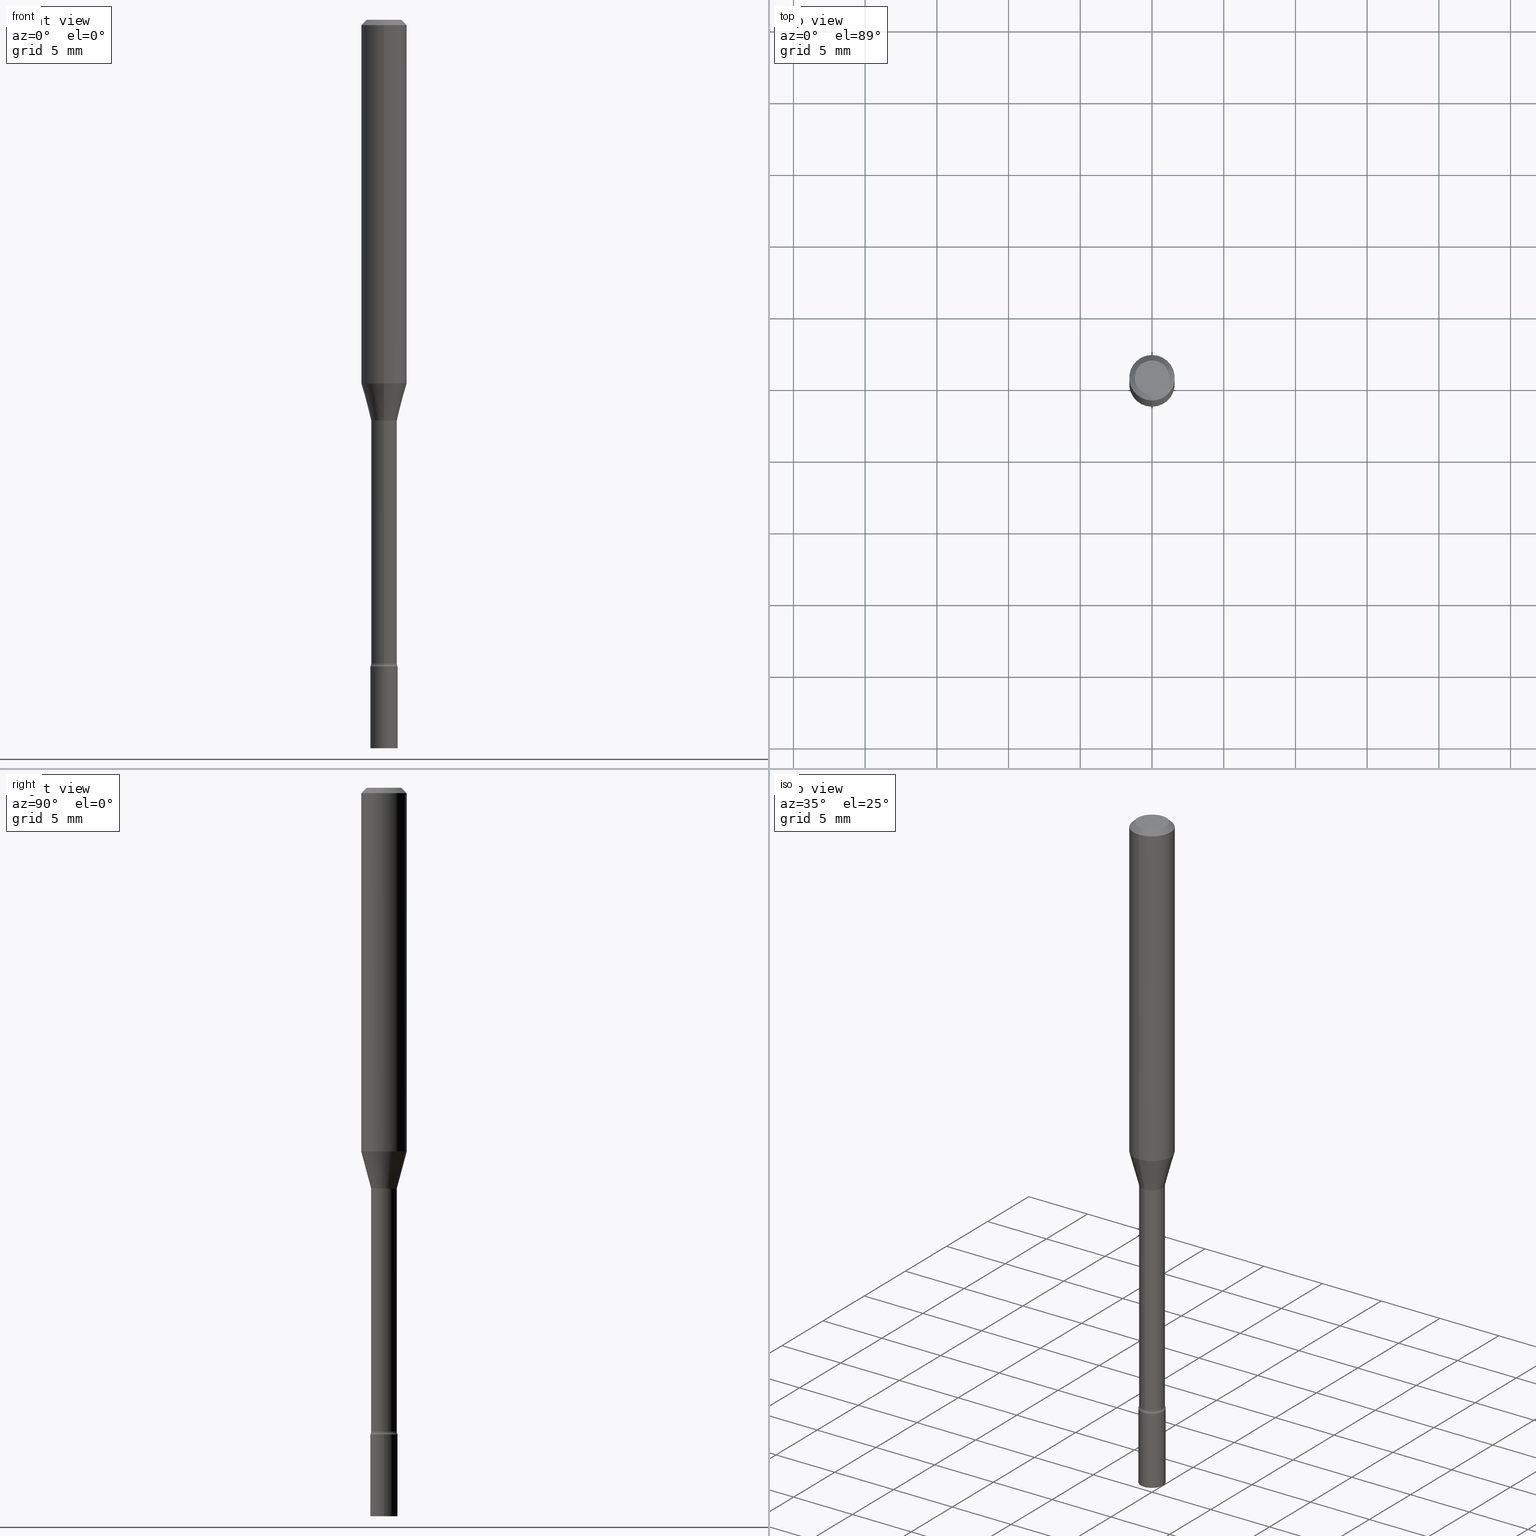
[diagram: canonical four-view strip — front | top / right | iso, engineering-drawing reading convention]
A machine part, canonical four-view strip (front | top / right | iso — engineering-drawing reading convention). The complete STEP part file that produces these views, byte-faithful:
ISO-10303-21;
HEADER;
FILE_DESCRIPTION (( 'STEP AP203' ),
    '1' );
FILE_NAME ('01355.STEP',
    '2024-03-08T21:16:16',
    ( '' ),
    ( '' ),
    'SwSTEP 2.0',
    'SolidWorks 2023',
    '' );
FILE_SCHEMA (( 'CONFIG_CONTROL_DESIGN' ));
ENDSEC;

DATA;
#1 = CARTESIAN_POINT ( 'NONE',  ( 4.890937612370273194E-29, -6.982962677686291165E-15, -2.000000000000000000 ) ) ;
#2 = ADVANCED_FACE ( 'NONE', ( #122 ), #491, .T. ) ;
#3 = FACE_OUTER_BOUND ( 'NONE', #233, .T. ) ;
#4 = LINE ( 'NONE', #11, #28 ) ;
#5 = VERTEX_POINT ( 'NONE', #46 ) ;
#6 = AXIS2_PLACEMENT_3D ( 'NONE', #339, #499, #294 ) ;
#7 = DIRECTION ( 'NONE',  ( -1.000000000000000000, 6.982962677686265922E-15, -4.883557194083112340E-29 ) ) ;
#8 = ORIENTED_EDGE ( 'NONE', *, *, #205, .F. ) ;
#9 = CARTESIAN_POINT ( 'NONE',  ( 4.340707130978617347E-29, -6.197379376446583794E-15, -1.775000000000000133 ) ) ;
#10 = EDGE_LOOP ( 'NONE', ( #270, #281, #43, #511 ) ) ;
#11 = CARTESIAN_POINT ( 'NONE',  ( 2.540979878465616281E-16, 0.03576111260566013778, -1.098092501787273356 ) ) ;
#12 = CONICAL_SURFACE ( 'NONE', #336, 0.03576111260566397498, 0.2617993877991499629 ) ;
#13 = APPROVAL_PERSON_ORGANIZATION ( #180, #462, #470 ) ;
#14 = CARTESIAN_POINT ( 'NONE',  ( 2.504663143554787774E-16, 0.03524999999999615247, -1.101974787463811056 ) ) ;
#15 = CYLINDRICAL_SURFACE ( 'NONE', #182, 0.03525000000000003825 ) ;
#16 = LINE ( 'NONE', #349, #385 ) ;
#17 = CIRCLE ( 'NONE', #282, 0.01499999999999999424 ) ;
#18 =( CONVERSION_BASED_UNIT ( 'INCH', #63 ) LENGTH_UNIT ( ) NAMED_UNIT ( #396 ) );
#19 = AXIS2_PLACEMENT_3D ( 'NONE', #74, #209, #239 ) ;
#20 = CC_DESIGN_SECURITY_CLASSIFICATION ( #338, ( #220 ) ) ;
#21 = LINE ( 'NONE', #505, #238 ) ;
#22 = PRODUCT_DEFINITION ( 'UNKNOWN', '', #220, #99 ) ;
#23 = PERSON_AND_ORGANIZATION ( #487, #67 ) ;
#24 = DIRECTION ( 'NONE',  ( -6.982962677686265133E-15, -1.000000000000000000, 3.819579138641765120E-15 ) ) ;
#25 = DATE_AND_TIME ( #388, #400 ) ;
#26 = DIRECTION ( 'NONE',  ( -2.438088387897960049E-29, 3.491481338843145188E-15, 1.000000000000000000 ) ) ;
#27 = CALENDAR_DATE ( 2024, 8, 3 ) ;
#28 = VECTOR ( 'NONE', #203, 39.37007874015748854 ) ;
#29 = CARTESIAN_POINT ( 'NONE',  ( -2.497185146378605472E-16, -0.03576111260566780525, -1.098092501787272912 ) ) ;
#30 = EDGE_LOOP ( 'NONE', ( #340, #452, #332, #200 ) ) ;
#31 = DIRECTION ( 'NONE',  ( 0.000000000000000000, 0.000000000000000000, 1.000000000000000000 ) ) ;
#32 = APPROVAL ( #463, 'UNSPECIFIED' ) ;
#33 = PLANE ( 'NONE',  #406 ) ;
#34 = ORIENTED_EDGE ( 'NONE', *, *, #171, .F. ) ;
#35 = CARTESIAN_POINT ( 'NONE',  ( 2.618611004132783890E-16, 0.03749999999999380218, -1.775000000000000133 ) ) ;
#36 = ORIENTED_EDGE ( 'NONE', *, *, #382, .T. ) ;
#37 = DIRECTION ( 'NONE',  ( -6.982962677686266711E-15, -1.000000000000000000, 0.000000000000000000 ) ) ;
#38 = CC_DESIGN_APPROVAL ( #32, ( #220 ) ) ;
#39 = CARTESIAN_POINT ( 'NONE',  ( 4.321383671524591751E-29, -6.169790597593636121E-15, -1.767098259685360606 ) ) ;
#40 = ORIENTED_EDGE ( 'NONE', *, *, #222, .F. ) ;
#41 = DIRECTION ( 'NONE',  ( -2.445481353659648780E-29, 3.491463370145485992E-15, 1.000000000000000000 ) ) ;
#42 = VERTEX_POINT ( 'NONE', #204 ) ;
#43 = ORIENTED_EDGE ( 'NONE', *, *, #272, .F. ) ;
#44 = CARTESIAN_POINT ( 'NONE',  ( 3.490935988483243741E-16, 0.03576111260566013778, -1.098092501787273356 ) ) ;
#45 = AXIS2_PLACEMENT_3D ( 'NONE', #218, #395, #397 ) ;
#46 = CARTESIAN_POINT ( 'NONE',  ( -2.461494343884138594E-16, -0.03525000000000384076, -1.101974787463810834 ) ) ;
#47 = CIRCLE ( 'NONE', #94, 0.04749999999999999362 ) ;
#48 = CARTESIAN_POINT ( 'NONE',  ( 2.685364737714250814E-29, -3.833949747021680851E-15, -1.098092501787273134 ) ) ;
#49 = FACE_OUTER_BOUND ( 'NONE', #108, .T. ) ;
#50 = APPLICATION_CONTEXT ( 'configuration controlled 3d designs of mechanical parts and assemblies' ) ;
#51 = CARTESIAN_POINT ( 'NONE',  ( 7.071051728594572601E-46, -1.009548409021640942E-31, -2.891476444100783444E-17 ) ) ;
#52 = ADVANCED_FACE ( 'NONE', ( #49 ), #467, .F. ) ;
#53 = ORIENTED_EDGE ( 'NONE', *, *, #178, .F. ) ;
#54 = CLOSED_SHELL ( 'NONE', ( #226, #188, #52, #286, #428, #57, #446, #2, #71, #315, #215, #356, #186, #105 ) ) ;
#55 = EDGE_CURVE ( 'NONE', #492, #335, #21, .T. ) ;
#56 = CONICAL_SURFACE ( 'NONE', #82, 0.06250000000000000000, 0.7853981633974483900 ) ;
#57 = ADVANCED_FACE ( 'NONE', ( #176 ), #12, .T. ) ;
#58 = CARTESIAN_POINT ( 'NONE',  ( 2.694844967945245181E-29, -3.847524406305537036E-15, -1.101974787463810834 ) ) ;
#59 = CYLINDRICAL_SURFACE ( 'NONE', #45, 0.03525000000000003825 ) ;
#60 = PERSON_AND_ORGANIZATION_ROLE ( 'design_supplier' ) ;
#61 = LOCAL_TIME ( 16, 16, 16.00000000000000000, #265 ) ;
#62 = CARTESIAN_POINT ( 'NONE',  ( -2.461494343883982794E-16, -0.03525000000000625550, -1.767098259685360606 ) ) ;
#63 = LENGTH_MEASURE_WITH_UNIT ( LENGTH_MEASURE( 0.02539999999999999897 ), #351 );
#64 = DIRECTION ( 'NONE',  ( 2.445481353659648780E-29, -3.491463370145485992E-15, -1.000000000000000000 ) ) ;
#65 = PERSON_AND_ORGANIZATION_ROLE ( 'creator' ) ;
#66 = EDGE_CURVE ( 'NONE', #273, #151, #421, .T. ) ;
#67 = ORGANIZATION ( 'UNSPECIFIED', 'UNSPECIFIED', '' ) ;
#68 = LINE ( 'NONE', #365, #497 ) ;
#69 = ORIENTED_EDGE ( 'NONE', *, *, #55, .T. ) ;
#70 = DIRECTION ( 'NONE',  ( 1.000000000000000000, -6.982962677686265922E-15, 4.876176775795935793E-29 ) ) ;
#71 = ADVANCED_FACE ( 'NONE', ( #179 ), #308, .T. ) ;
#72 = ORIENTED_EDGE ( 'NONE', *, *, #66, .T. ) ;
#73 = AXIS2_PLACEMENT_3D ( 'NONE', #387, #95, #502 ) ;
#74 = CARTESIAN_POINT ( 'NONE',  ( 2.685364737714250814E-29, -3.833949747021680851E-15, -1.098092501787273134 ) ) ;
#75 = ORIENTED_EDGE ( 'NONE', *, *, #347, .F. ) ;
#76 = DIRECTION ( 'NONE',  ( -2.445481353659648780E-29, 3.491463370145485992E-15, 1.000000000000000000 ) ) ;
#77 = VERTEX_POINT ( 'NONE', #14 ) ;
#78 = CYLINDRICAL_SURFACE ( 'NONE', #246, 0.06250000000000000000 ) ;
#79 = ORIENTED_EDGE ( 'NONE', *, *, #475, .F. ) ;
#80 = ADVANCED_FACE ( 'NONE', ( #134 ), #307, .T. ) ;
#81 = CARTESIAN_POINT ( 'NONE',  ( 0.03749999999999999861, -2.618611004132350016E-16, 1.828566290923475922E-30 ) ) ;
#82 = AXIS2_PLACEMENT_3D ( 'NONE', #357, #64, #144 ) ;
#83 = CARTESIAN_POINT ( 'NONE',  ( -2.497185146378605472E-16, -0.03576111260566780525, -1.098092501787272912 ) ) ;
#84 = ORIENTED_EDGE ( 'NONE', *, *, #267, .T. ) ;
#85 = ORIENTED_EDGE ( 'NONE', *, *, #55, .F. ) ;
#86 = DIRECTION ( 'NONE',  ( -2.445481353659648780E-29, 3.491463370145485992E-15, 1.000000000000000000 ) ) ;
#87 = AXIS2_PLACEMENT_3D ( 'NONE', #469, #252, #123 ) ;
#88 = AXIS2_PLACEMENT_3D ( 'NONE', #389, #480, #106 ) ;
#89 =( GEOMETRIC_REPRESENTATION_CONTEXT ( 3 ) GLOBAL_UNCERTAINTY_ASSIGNED_CONTEXT ( ( #460 ) ) GLOBAL_UNIT_ASSIGNED_CONTEXT ( ( #18, #306, #225 ) ) REPRESENTATION_CONTEXT ( 'NONE', 'WORKASPACE' ) );
#90 = EDGE_CURVE ( 'NONE', #151, #335, #391, .T. ) ;
#91 = CARTESIAN_POINT ( 'NONE',  ( -3.773273898774340269E-16, -0.04749999999999999362, 1.369297456409027800E-16 ) ) ;
#92 = DIRECTION ( 'NONE',  ( -6.982962677686265133E-15, -1.000000000000000000, 3.819579138641765120E-15 ) ) ;
#93 = CARTESIAN_POINT ( 'NONE',  ( 3.668222030489480229E-31, -5.237195055218239563E-17, -0.01500000000000003067 ) ) ;
#94 = AXIS2_PLACEMENT_3D ( 'NONE', #51, #249, #288 ) ;
#95 = DIRECTION ( 'NONE',  ( -2.445481353659648780E-29, 3.491463370145485992E-15, 1.000000000000000000 ) ) ;
#96 = CARTESIAN_POINT ( 'NONE',  ( 4.321405844144966005E-29, -6.169758845139272313E-15, -1.767098259685360606 ) ) ;
#97 = EDGE_CURVE ( 'NONE', #481, #312, #413, .T. ) ;
#98 = ORIENTED_EDGE ( 'NONE', *, *, #337, .T. ) ;
#99 = DESIGN_CONTEXT ( 'detailed design', #50, 'design' ) ;
#100 = DIRECTION ( 'NONE',  ( -2.445481353659648499E-29, 3.491463370145485992E-15, 1.000000000000000000 ) ) ;
#101 = ORIENTED_EDGE ( 'NONE', *, *, #447, .F. ) ;
#102 = AXIS2_PLACEMENT_3D ( 'NONE', #96, #234, #37 ) ;
#103 = DIRECTION ( 'NONE',  ( -2.445468806185136597E-29, 3.491481338843145583E-15, 1.000000000000000000 ) ) ;
#104 = ORIENTED_EDGE ( 'NONE', *, *, #133, .T. ) ;
#105 = ADVANCED_FACE ( 'NONE', ( #416 ), #377, .F. ) ;
#106 = DIRECTION ( 'NONE',  ( 1.000000000000000000, -6.982962677686268288E-15, 0.000000000000000000 ) ) ;
#107 = CARTESIAN_POINT ( 'NONE',  ( 2.694858794945804127E-29, -3.847504605253753145E-15, -1.101974787463810834 ) ) ;
#108 = EDGE_LOOP ( 'NONE', ( #329, #494, #405, #230 ) ) ;
#109 = SHAPE_DEFINITION_REPRESENTATION ( #135, #297 ) ;
#110 = DIRECTION ( 'NONE',  ( -1.807323732225328167E-15, -0.2588190451025179084, 0.9659258262890690894 ) ) ;
#111 = CIRCLE ( 'NONE', #503, 0.03749999999999999861 ) ;
#112 = DIRECTION ( 'NONE',  ( -6.982962677686265133E-15, -1.000000000000000000, 3.819579138641765120E-15 ) ) ;
#113 = DIRECTION ( 'NONE',  ( -6.982962677686265922E-15, -1.000000000000000000, 3.491463370145485992E-15 ) ) ;
#114 = ADVANCED_FACE ( 'NONE', ( #504 ), #262, .T. ) ;
#115 = CARTESIAN_POINT ( 'NONE',  ( 4.364351673553919652E-16, 0.06249999999999995143, -0.01500000000000024751 ) ) ;
#116 = CARTESIAN_POINT ( 'NONE',  ( 0.000000000000000000, 0.000000000000000000, 0.000000000000000000 ) ) ;
#117 = CARTESIAN_POINT ( 'NONE',  ( 4.440892098500871695E-16, 0.06249999999999995837, -0.01500000000000024751 ) ) ;
#118 = AXIS2_PLACEMENT_3D ( 'NONE', #359, #26, #70 ) ;
#119 = AXIS2_PLACEMENT_3D ( 'NONE', #193, #437, #232 ) ;
#120 = ORIENTED_EDGE ( 'NONE', *, *, #382, .F. ) ;
#121 = CARTESIAN_POINT ( 'NONE',  ( 0.000000000000000000, 0.000000000000000000, 0.000000000000000000 ) ) ;
#122 = FACE_OUTER_BOUND ( 'NONE', #401, .T. ) ;
#123 = DIRECTION ( 'NONE',  ( 1.000000000000000000, -6.982962677686266711E-15, 4.876176775795935793E-29 ) ) ;
#124 = EDGE_CURVE ( 'NONE', #187, #151, #16, .T. ) ;
#125 = CARTESIAN_POINT ( 'NONE',  ( 0.000000000000000000, 0.000000000000000000, 0.000000000000000000 ) ) ;
#126 = AXIS2_PLACEMENT_3D ( 'NONE', #116, #412, #113 ) ;
#127 = LOCAL_TIME ( 16, 16, 16.00000000000000000, #465 ) ;
#128 = DIRECTION ( 'NONE',  ( -6.982962677686266711E-15, -1.000000000000000000, 0.000000000000000000 ) ) ;
#129 = APPROVAL ( #303, 'UNSPECIFIED' ) ;
#130 = MECHANICAL_CONTEXT ( 'NONE', #161, 'mechanical' ) ;
#131 = DIRECTION ( 'NONE',  ( 2.445481353659648780E-29, -3.491463370145485992E-15, -1.000000000000000000 ) ) ;
#132 = COORDINATED_UNIVERSAL_TIME_OFFSET ( 5, 0, .BEHIND. ) ;
#133 = EDGE_CURVE ( 'NONE', #187, #139, #327, .T. ) ;
#134 = FACE_OUTER_BOUND ( 'NONE', #275, .T. ) ;
#135 = PRODUCT_DEFINITION_SHAPE ( 'NONE', 'NONE',  #22 ) ;
#136 = APPROVAL_STATUS ( 'not_yet_approved' ) ;
#137 = AXIS2_PLACEMENT_3D ( 'NONE', #409, #293, #371 ) ;
#138 = DIRECTION ( 'NONE',  ( -2.445481353659648780E-29, 3.491463370145485992E-15, 1.000000000000000000 ) ) ;
#139 = VERTEX_POINT ( 'NONE', #221 ) ;
#140 = CARTESIAN_POINT ( 'NONE',  ( 0.000000000000000000, 0.000000000000000000, 0.000000000000000000 ) ) ;
#141 = PLANE ( 'NONE',  #118 ) ;
#142 = ORIENTED_EDGE ( 'NONE', *, *, #222, .T. ) ;
#143 = DATE_TIME_ROLE ( 'creation_date' ) ;
#144 = DIRECTION ( 'NONE',  ( 6.982962677686265922E-15, 1.000000000000000000, -3.483106191921935554E-15 ) ) ;
#145 = ORIENTED_EDGE ( 'NONE', *, *, #257, .F. ) ;
#146 = CIRCLE ( 'NONE', #173, 0.03525000000000008682 ) ;
#147 = CC_DESIGN_APPROVAL ( #462, ( #338 ) ) ;
#148 = CARTESIAN_POINT ( 'NONE',  ( 3.570477247194940479E-16, 0.05024999999999391065, -1.767098259685361050 ) ) ;
#149 = DIRECTION ( 'NONE',  ( -2.445468806185136597E-29, 3.491481338843145583E-15, 1.000000000000000000 ) ) ;
#150 = CARTESIAN_POINT ( 'NONE',  ( -0.03749999999999999861, -6.323717501156401251E-15, -1.775000000000000133 ) ) ;
#151 = VERTEX_POINT ( 'NONE', #423 ) ;
#152 = ORIENTED_EDGE ( 'NONE', *, *, #483, .F. ) ;
#153 = AXIS2_PLACEMENT_3D ( 'NONE', #305, #383, #464 ) ;
#154 = CIRCLE ( 'NONE', #378, 0.03524999999999999661 ) ;
#155 = CARTESIAN_POINT ( 'NONE',  ( -2.618611004131915157E-16, -0.03750000000000618811, -1.775000000000000133 ) ) ;
#156 = CC_DESIGN_DATE_AND_TIME_ASSIGNMENT ( #25, #425, ( #338 ) ) ;
#157 = AXIS2_PLACEMENT_3D ( 'NONE', #227, #392, #317 ) ;
#158 = VERTEX_POINT ( 'NONE', #62 ) ;
#159 = CARTESIAN_POINT ( 'NONE',  ( -0.03749999999999999861, 2.664535259100375598E-16, -1.844600658845589458E-30 ) ) ;
#160 = ORIENTED_EDGE ( 'NONE', *, *, #97, .T. ) ;
#161 = APPLICATION_CONTEXT ( 'configuration controlled 3d designs of mechanical parts and assemblies' ) ;
#162 = DIRECTION ( 'NONE',  ( 1.000000000000000000, -6.982962677686268288E-15, 0.000000000000000000 ) ) ;
#163 = ORIENTED_EDGE ( 'NONE', *, *, #97, .F. ) ;
#164 = CC_DESIGN_DATE_AND_TIME_ASSIGNMENT ( #509, #143, ( #22 ) ) ;
#165 = CARTESIAN_POINT ( 'NONE',  ( 2.584599201327800595E-16, 0.03524999999999392508, -1.767098259685360606 ) ) ;
#166 = CLOSED_SHELL ( 'NONE', ( #80, #228, #296, #114 ) ) ;
#167 = EDGE_LOOP ( 'NONE', ( #354, #290, #295, #152 ) ) ;
#168 = TOROIDAL_SURFACE ( 'NONE', #498, 0.05025000000000007933, 0.01499999999999999077 ) ;
#169 = DIRECTION ( 'NONE',  ( -2.445481353659649060E-29, 3.491463370145485992E-15, 1.000000000000000000 ) ) ;
#170 = DIRECTION ( 'NONE',  ( -6.982962677686265922E-15, -1.000000000000000000, 3.491463370145485992E-15 ) ) ;
#171 = EDGE_CURVE ( 'NONE', #158, #403, #146, .T. ) ;
#172 = DIRECTION ( 'NONE',  ( -4.851104656540964275E-15, -0.7071067811865500152, -0.7071067811865450192 ) ) ;
#173 = AXIS2_PLACEMENT_3D ( 'NONE', #379, #86, #128 ) ;
#174 = AXIS2_PLACEMENT_3D ( 'NONE', #284, #247, #368 ) ;
#175 = APPROVAL_ROLE ( '' ) ;
#176 = FACE_OUTER_BOUND ( 'NONE', #30, .T. ) ;
#177 = PERSON_AND_ORGANIZATION_ROLE ( 'classification_officer' ) ;
#178 = EDGE_CURVE ( 'NONE', #481, #77, #17, .T. ) ;
#179 = FACE_OUTER_BOUND ( 'NONE', #333, .T. ) ;
#180 = PERSON_AND_ORGANIZATION ( #487, #67 ) ;
#181 = DIRECTION ( 'NONE',  ( -2.445481353659648780E-29, 3.491463370145485992E-15, 1.000000000000000000 ) ) ;
#182 = AXIS2_PLACEMENT_3D ( 'NONE', #125, #301, #461 ) ;
#183 = CALENDAR_DATE ( 2024, 8, 3 ) ;
#184 = CIRCLE ( 'NONE', #157, 0.06250000000000000000 ) ;
#185 = FACE_OUTER_BOUND ( 'NONE', #514, .T. ) ;
#186 = ADVANCED_FACE ( 'NONE', ( #381 ), #15, .T. ) ;
#187 = VERTEX_POINT ( 'NONE', #91 ) ;
#188 = ADVANCED_FACE ( 'NONE', ( #418 ), #59, .T. ) ;
#189 = DIRECTION ( 'NONE',  ( 1.000000000000000000, 0.000000000000000000, 0.000000000000000000 ) ) ;
#190 = DIRECTION ( 'NONE',  ( 1.000000000000000000, -6.982962677686266711E-15, 4.876176775795935793E-29 ) ) ;
#191 = EDGE_CURVE ( 'NONE', #318, #42, #194, .T. ) ;
#192 = EDGE_LOOP ( 'NONE', ( #341, #235 ) ) ;
#193 = CARTESIAN_POINT ( 'NONE',  ( 4.340729402745876843E-29, -6.197347482008238779E-15, -1.775000000000000133 ) ) ;
#194 = CIRCLE ( 'NONE', #251, 0.03749999999999999861 ) ;
#195 = CIRCLE ( 'NONE', #19, 0.03576111260566397498 ) ;
#196 = DIRECTION ( 'NONE',  ( -6.982962677686265922E-15, -1.000000000000000000, 3.491463370145485992E-15 ) ) ;
#197 = CARTESIAN_POINT ( 'NONE',  ( 3.668222030489480229E-31, -5.237195055218239563E-17, -0.01500000000000003067 ) ) ;
#198 = ORIENTED_EDGE ( 'NONE', *, *, #474, .F. ) ;
#199 = FACE_OUTER_BOUND ( 'NONE', #316, .T. ) ;
#200 = ORIENTED_EDGE ( 'NONE', *, *, #444, .F. ) ;
#201 = AXIS2_PLACEMENT_3D ( 'NONE', #58, #216, #299 ) ;
#202 = CIRCLE ( 'NONE', #119, 0.03749999999999999861 ) ;
#203 = DIRECTION ( 'NONE',  ( 1.839019923739597949E-15, 0.2588190451025246253, 0.9659258262890670910 ) ) ;
#204 = CARTESIAN_POINT ( 'NONE',  ( 0.03749999999999999861, -7.244823778099525378E-15, -2.000000000000000000 ) ) ;
#205 = EDGE_CURVE ( 'NONE', #455, #443, #291, .T. ) ;
#206 = DIRECTION ( 'NONE',  ( -2.445481353659648780E-29, 3.491463370145485992E-15, 1.000000000000000000 ) ) ;
#207 = EDGE_CURVE ( 'NONE', #403, #158, #344, .T. ) ;
#208 = ORIENTED_EDGE ( 'NONE', *, *, #432, .T. ) ;
#209 = DIRECTION ( 'NONE',  ( -2.445481353659648780E-29, 3.491463370145485992E-15, 1.000000000000000000 ) ) ;
#210 = ORIENTED_EDGE ( 'NONE', *, *, #457, .T. ) ;
#211 = ORIENTED_EDGE ( 'NONE', *, *, #454, .F. ) ;
#212 = EDGE_LOOP ( 'NONE', ( #79, #358, #472, #8 ) ) ;
#213 = CONICAL_SURFACE ( 'NONE', #345, 0.03576111260566397498, 0.2617993877991499629 ) ;
#214 = DIRECTION ( 'NONE',  ( -2.445481353659648780E-29, 3.491463370145485992E-15, 1.000000000000000000 ) ) ;
#215 = ADVANCED_FACE ( 'NONE', ( #236 ), #33, .F. ) ;
#216 = DIRECTION ( 'NONE',  ( -2.445481353659648780E-29, 3.491463370145485992E-15, 1.000000000000000000 ) ) ;
#217 = PERSON_AND_ORGANIZATION_ROLE ( 'design_owner' ) ;
#218 = CARTESIAN_POINT ( 'NONE',  ( 0.000000000000000000, 0.000000000000000000, 0.000000000000000000 ) ) ;
#219 = AXIS2_PLACEMENT_3D ( 'NONE', #323, #515, #399 ) ;
#220 = PRODUCT_DEFINITION_FORMATION_WITH_SPECIFIED_SOURCE ( 'ANY', '', #260, .NOT_KNOWN. ) ;
#221 = CARTESIAN_POINT ( 'NONE',  ( 3.840629472727447874E-16, 0.04749999999999999362, -1.947592745229183872E-16 ) ) ;
#222 = EDGE_CURVE ( 'NONE', #77, #5, #448, .T. ) ;
#223 = DATE_AND_TIME ( #419, #292 ) ;
#224 = DIRECTION ( 'NONE',  ( 1.000000000000000000, -7.105427357601001070E-15, 4.926315288489001421E-29 ) ) ;
#225 =( NAMED_UNIT ( * ) SI_UNIT ( $, .STERADIAN. ) SOLID_ANGLE_UNIT ( ) );
#226 = ADVANCED_FACE ( 'NONE', ( #435 ), #518, .F. ) ;
#227 = CARTESIAN_POINT ( 'NONE',  ( 2.441327986018265977E-29, -3.485533522853485629E-15, -0.9983016154937482955 ) ) ;
#228 = ADVANCED_FACE ( 'NONE', ( #361 ), #141, .T. ) ;
#229 = AXIS2_PLACEMENT_3D ( 'NONE', #343, #346, #456 ) ;
#230 = ORIENTED_EDGE ( 'NONE', *, *, #322, .F. ) ;
#231 = VECTOR ( 'NONE', #496, 39.37007874015748143 ) ;
#232 = DIRECTION ( 'NONE',  ( -6.982962677686265922E-15, -1.000000000000000000, 0.000000000000000000 ) ) ;
#233 = EDGE_LOOP ( 'NONE', ( #75, #160, #436, #101 ) ) ;
#234 = DIRECTION ( 'NONE',  ( -2.445481353659648780E-29, 3.491463370145485992E-15, 1.000000000000000000 ) ) ;
#235 = ORIENTED_EDGE ( 'NONE', *, *, #191, .F. ) ;
#236 = FACE_OUTER_BOUND ( 'NONE', #330, .T. ) ;
#237 = ORIENTED_EDGE ( 'NONE', *, *, #424, .T. ) ;
#238 = VECTOR ( 'NONE', #350, 39.37007874015748143 ) ;
#239 = DIRECTION ( 'NONE',  ( -6.982962677686265133E-15, -1.000000000000000000, 3.819579138641765120E-15 ) ) ;
#240 = ORIENTED_EDGE ( 'NONE', *, *, #337, .F. ) ;
#241 = DIRECTION ( 'NONE',  ( -2.445481353659648780E-29, 3.491463370145485992E-15, 1.000000000000000000 ) ) ;
#242 = ORIENTED_EDGE ( 'NONE', *, *, #304, .T. ) ;
#243 = COORDINATED_UNIVERSAL_TIME_OFFSET ( 5, 0, .BEHIND. ) ;
#244 = LINE ( 'NONE', #328, #276 ) ;
#245 = ORIENTED_EDGE ( 'NONE', *, *, #322, .T. ) ;
#246 = AXIS2_PLACEMENT_3D ( 'NONE', #121, #76, #408 ) ;
#247 = DIRECTION ( 'NONE',  ( -1.000000000000000000, 6.982962677686265922E-15, -4.883557194083112340E-29 ) ) ;
#248 = ORIENTED_EDGE ( 'NONE', *, *, #205, .T. ) ;
#249 = DIRECTION ( 'NONE',  ( -2.445481353659648780E-29, 3.491463370145485992E-15, 1.000000000000000000 ) ) ;
#250 = ORIENTED_EDGE ( 'NONE', *, *, #287, .F. ) ;
#251 = AXIS2_PLACEMENT_3D ( 'NONE', #476, #320, #279 ) ;
#252 = DIRECTION ( 'NONE',  ( -2.445468806185136597E-29, 3.491481338843145583E-15, 1.000000000000000000 ) ) ;
#253 = AXIS2_PLACEMENT_3D ( 'NONE', #325, #7, #486 ) ;
#254 = CC_DESIGN_PERSON_AND_ORGANIZATION_ASSIGNMENT ( #390, #217, ( #260 ) ) ;
#255 = CARTESIAN_POINT ( 'NONE',  ( 2.685364737714250814E-29, -3.833949747021680851E-15, -1.098092501787273134 ) ) ;
#256 = COORDINATED_UNIVERSAL_TIME_OFFSET ( 5, 0, .BEHIND. ) ;
#257 = EDGE_CURVE ( 'NONE', #403, #77, #68, .T. ) ;
#258 = DIRECTION ( 'NONE',  ( -2.445481353659648780E-29, 3.491463370145485992E-15, 1.000000000000000000 ) ) ;
#259 = PERSON_AND_ORGANIZATION_ROLE ( 'creator' ) ;
#260 = PRODUCT ( '01355', '01355', '', ( #130 ) ) ;
#261 = EDGE_CURVE ( 'NONE', #403, #479, #263, .T. ) ;
#262 = PLANE ( 'NONE',  #153 ) ;
#263 = CIRCLE ( 'NONE', #393, 0.01499999999999999424 ) ;
#264 = AXIS2_PLACEMENT_3D ( 'NONE', #140, #31, #189 ) ;
#265 = COORDINATED_UNIVERSAL_TIME_OFFSET ( 5, 0, .BEHIND. ) ;
#266 = CARTESIAN_POINT ( 'NONE',  ( 2.685364737714250814E-29, -3.833949747021680851E-15, -1.098092501787273134 ) ) ;
#267 = EDGE_CURVE ( 'NONE', #42, #318, #459, .T. ) ;
#268 = APPLICATION_PROTOCOL_DEFINITION ( 'international standard', 'config_control_design', 1994, #50 ) ;
#269 = DIRECTION ( 'NONE',  ( -6.982962677686265922E-15, -1.000000000000000000, 3.491463370145485992E-15 ) ) ;
#270 = ORIENTED_EDGE ( 'NONE', *, *, #171, .T. ) ;
#271 = APPROVAL_DATE_TIME ( #223, #32 ) ;
#272 = EDGE_CURVE ( 'NONE', #5, #77, #154, .T. ) ;
#273 = VERTEX_POINT ( 'NONE', #426 ) ;
#274 = DIRECTION ( 'NONE',  ( 7.105427357600997914E-15, 1.000000000000000000, 0.000000000000000000 ) ) ;
#275 = EDGE_LOOP ( 'NONE', ( #84, #517, #240, #438 ) ) ;
#276 = VECTOR ( 'NONE', #451, 39.37007874015748143 ) ;
#277 = DIRECTION ( 'NONE',  ( 6.982962677686265922E-15, 1.000000000000000000, -3.491463370145485992E-15 ) ) ;
#278 = ORIENTED_EDGE ( 'NONE', *, *, #424, .F. ) ;
#279 = DIRECTION ( 'NONE',  ( 1.000000000000000000, -6.982962677686268288E-15, 0.000000000000000000 ) ) ;
#280 = FACE_OUTER_BOUND ( 'NONE', #167, .T. ) ;
#281 = ORIENTED_EDGE ( 'NONE', *, *, #257, .T. ) ;
#282 = AXIS2_PLACEMENT_3D ( 'NONE', #302, #342, #501 ) ;
#283 = CIRCLE ( 'NONE', #6, 0.06250000000000000000 ) ;
#284 = CARTESIAN_POINT ( 'NONE',  ( -3.508938745536922406E-16, -0.05025000000000625494, -1.767098259685360384 ) ) ;
#285 = EDGE_LOOP ( 'NONE', ( #98, #248 ) ) ;
#286 = ADVANCED_FACE ( 'NONE', ( #280 ), #56, .T. ) ;
#287 = EDGE_CURVE ( 'NONE', #479, #398, #202, .T. ) ;
#288 = DIRECTION ( 'NONE',  ( -6.982962677686266711E-15, -1.000000000000000000, 3.491463370145486386E-15 ) ) ;
#289 = DIRECTION ( 'NONE',  ( 4.937700262164548042E-15, 0.7071067811865451302, -0.7071067811865499042 ) ) ;
#290 = ORIENTED_EDGE ( 'NONE', *, *, #124, .T. ) ;
#291 = CIRCLE ( 'NONE', #88, 0.03749999999999999861 ) ;
#292 = LOCAL_TIME ( 16, 16, 16.00000000000000000, #256 ) ;
#293 = DIRECTION ( 'NONE',  ( -2.445481353659648780E-29, 3.491463370145485992E-15, 1.000000000000000000 ) ) ;
#294 = DIRECTION ( 'NONE',  ( -6.982962677686265922E-15, -1.000000000000000000, 4.370956789862821150E-15 ) ) ;
#295 = ORIENTED_EDGE ( 'NONE', *, *, #90, .T. ) ;
#296 = ADVANCED_FACE ( 'NONE', ( #352 ), #471, .T. ) ;
#297 = ADVANCED_BREP_SHAPE_REPRESENTATION ( '01355', ( #380, #376, #264 ), #89 ) ;
#298 = CC_DESIGN_PERSON_AND_ORGANIZATION_ASSIGNMENT ( #313, #259, ( #22 ) ) ;
#299 = DIRECTION ( 'NONE',  ( -6.982962677686265922E-15, -1.000000000000000000, 3.491463370145485992E-15 ) ) ;
#300 = VECTOR ( 'NONE', #493, 39.37007874015748143 ) ;
#301 = DIRECTION ( 'NONE',  ( -2.445481353659648780E-29, 3.491463370145485992E-15, 1.000000000000000000 ) ) ;
#302 = CARTESIAN_POINT ( 'NONE',  ( 3.570477247194771860E-16, 0.05024999999999614497, -1.101974787463811056 ) ) ;
#303 = APPROVAL_STATUS ( 'not_yet_approved' ) ;
#304 = EDGE_CURVE ( 'NONE', #273, #492, #184, .T. ) ;
#305 = CARTESIAN_POINT ( 'NONE',  ( 2.618611004132838617E-16, 0.03749999999999301115, -2.000000000000000000 ) ) ;
#306 =( NAMED_UNIT ( * ) PLANE_ANGLE_UNIT ( ) SI_UNIT ( $, .RADIAN. ) );
#307 = CYLINDRICAL_SURFACE ( 'NONE', #87, 0.03749999999999999861 ) ;
#308 = CONICAL_SURFACE ( 'NONE', #488, 0.06250000000000000000, 0.7853981633974483900 ) ;
#309 = LOCAL_TIME ( 16, 16, 16.00000000000000000, #243 ) ;
#310 = SECURITY_CLASSIFICATION_LEVEL ( 'unclassified' ) ;
#311 = DIRECTION ( 'NONE',  ( -2.445481353659649060E-29, 3.491463370145485992E-15, 1.000000000000000000 ) ) ;
#312 = VERTEX_POINT ( 'NONE', #29 ) ;
#313 = PERSON_AND_ORGANIZATION ( #487, #67 ) ;
#314 = CARTESIAN_POINT ( 'NONE',  ( 3.316907271900976096E-16, 0.04749999999999999362, -1.803018923024144731E-16 ) ) ;
#315 = ADVANCED_FACE ( 'NONE', ( #185 ), #513, .F. ) ;
#316 = EDGE_LOOP ( 'NONE', ( #411, #34, #245, #237 ) ) ;
#317 = DIRECTION ( 'NONE',  ( -6.982962677686265922E-15, -1.000000000000000000, 4.370956789862821150E-15 ) ) ;
#318 = VERTEX_POINT ( 'NONE', #433 ) ;
#319 = CIRCLE ( 'NONE', #253, 0.01499999999999999424 ) ;
#320 = DIRECTION ( 'NONE',  ( -2.445468806185136597E-29, 3.491481338843145583E-15, 1.000000000000000000 ) ) ;
#321 = APPROVAL_DATE_TIME ( #485, #462 ) ;
#322 = EDGE_CURVE ( 'NONE', #158, #398, #394, .T. ) ;
#323 = CARTESIAN_POINT ( 'NONE',  ( 2.694858794945804127E-29, -3.847504605253753145E-15, -1.101974787463810834 ) ) ;
#324 = EDGE_LOOP ( 'NONE', ( #145, #366, #208, #40 ) ) ;
#325 = CARTESIAN_POINT ( 'NONE',  ( -3.508938745537078699E-16, -0.05025000000000384714, -1.101974787463810834 ) ) ;
#326 = ORIENTED_EDGE ( 'NONE', *, *, #457, .F. ) ;
#327 = CIRCLE ( 'NONE', #229, 0.04749999999999999362 ) ;
#328 = CARTESIAN_POINT ( 'NONE',  ( -2.461494343884411737E-16, -0.03525000000000003825, 1.230740837976285376E-16 ) ) ;
#329 = ORIENTED_EDGE ( 'NONE', *, *, #207, .F. ) ;
#330 = EDGE_LOOP ( 'NONE', ( #278, #250 ) ) ;
#331 = LINE ( 'NONE', #115, #489 ) ;
#332 = ORIENTED_EDGE ( 'NONE', *, *, #304, .F. ) ;
#333 = EDGE_LOOP ( 'NONE', ( #441, #326, #360, #36 ) ) ;
#334 = LINE ( 'NONE', #81, #231 ) ;
#335 = VERTEX_POINT ( 'NONE', #117 ) ;
#336 = AXIS2_PLACEMENT_3D ( 'NONE', #255, #466, #24 ) ;
#337 = EDGE_CURVE ( 'NONE', #443, #455, #111, .T. ) ;
#338 = SECURITY_CLASSIFICATION ( '', '', #310 ) ;
#339 = CARTESIAN_POINT ( 'NONE',  ( 2.441327986018265977E-29, -3.485533522853485629E-15, -0.9983016154937482955 ) ) ;
#340 = ORIENTED_EDGE ( 'NONE', *, *, #454, .T. ) ;
#341 = ORIENTED_EDGE ( 'NONE', *, *, #267, .F. ) ;
#342 = DIRECTION ( 'NONE',  ( 1.000000000000000000, -7.105427357601001070E-15, 4.926315288489001421E-29 ) ) ;
#343 = CARTESIAN_POINT ( 'NONE',  ( 7.071051728594572601E-46, -1.009548409021640942E-31, -2.891476444100783444E-17 ) ) ;
#344 = CIRCLE ( 'NONE', #102, 0.03525000000000008682 ) ;
#345 = AXIS2_PLACEMENT_3D ( 'NONE', #48, #241, #112 ) ;
#346 = DIRECTION ( 'NONE',  ( -2.445481353659648780E-29, 3.491463370145485992E-15, 1.000000000000000000 ) ) ;
#347 = EDGE_CURVE ( 'NONE', #481, #492, #4, .T. ) ;
#348 = DATE_AND_TIME ( #27, #61 ) ;
#349 = CARTESIAN_POINT ( 'NONE',  ( -4.287811248607203282E-16, -0.06250000000000005551, -0.01499999999999981209 ) ) ;
#350 = DIRECTION ( 'NONE',  ( -2.445481353659649060E-29, 3.491463370145485992E-15, 1.000000000000000000 ) ) ;
#351 =( LENGTH_UNIT ( ) NAMED_UNIT ( * ) SI_UNIT ( $, .METRE. ) );
#352 = FACE_OUTER_BOUND ( 'NONE', #212, .T. ) ;
#353 = VECTOR ( 'NONE', #169, 39.37007874015748143 ) ;
#354 = ORIENTED_EDGE ( 'NONE', *, *, #133, .F. ) ;
#355 = APPLICATION_PROTOCOL_DEFINITION ( 'international standard', 'config_control_design', 1994, #161 ) ;
#356 = ADVANCED_FACE ( 'NONE', ( #199 ), #168, .F. ) ;
#357 = CARTESIAN_POINT ( 'NONE',  ( 3.668222030489480229E-31, -5.237195055218239563E-17, -0.01500000000000003067 ) ) ;
#358 = ORIENTED_EDGE ( 'NONE', *, *, #191, .T. ) ;
#359 = CARTESIAN_POINT ( 'NONE',  ( 4.340707130978617347E-29, -6.197379376446583794E-15, -1.775000000000000133 ) ) ;
#360 = ORIENTED_EDGE ( 'NONE', *, *, #483, .T. ) ;
#361 = FACE_OUTER_BOUND ( 'NONE', #285, .T. ) ;
#362 = AXIS2_PLACEMENT_3D ( 'NONE', #430, #138, #196 ) ;
#363 = EDGE_CURVE ( 'NONE', #42, #443, #334, .T. ) ;
#364 = AXIS2_PLACEMENT_3D ( 'NONE', #510, #103, #190 ) ;
#365 = CARTESIAN_POINT ( 'NONE',  ( 2.504663143554355873E-16, 0.03525000000000003825, -1.230740837976285376E-16 ) ) ;
#366 = ORIENTED_EDGE ( 'NONE', *, *, #207, .T. ) ;
#367 = LINE ( 'NONE', #83, #439 ) ;
#368 = DIRECTION ( 'NONE',  ( -6.982962677686262766E-15, -1.000000000000000000, 0.000000000000000000 ) ) ;
#369 = CALENDAR_DATE ( 2024, 8, 3 ) ;
#370 = AXIS2_PLACEMENT_3D ( 'NONE', #314, #477, #277 ) ;
#371 = DIRECTION ( 'NONE',  ( -6.982962677686265922E-15, -1.000000000000000000, 0.000000000000000000 ) ) ;
#372 = CARTESIAN_POINT ( 'NONE',  ( 0.03749999999999999861, -6.459240476859818795E-15, -1.775000000000000133 ) ) ;
#373 = ORIENTED_EDGE ( 'NONE', *, *, #90, .F. ) ;
#374 = DIRECTION ( 'NONE',  ( -6.982962677686265922E-15, -1.000000000000000000, 3.483106191921935554E-15 ) ) ;
#375 = EDGE_LOOP ( 'NONE', ( #242, #69, #373, #431 ) ) ;
#376 = MANIFOLD_SOLID_BREP ( 'Body-Move/Copy2[2]', #54 ) ;
#377 = TOROIDAL_SURFACE ( 'NONE', #201, 0.05024999999999999606, 0.01499999999999999077 ) ;
#378 = AXIS2_PLACEMENT_3D ( 'NONE', #107, #181, #519 ) ;
#379 = CARTESIAN_POINT ( 'NONE',  ( 4.321405844144966005E-29, -6.169758845139272313E-15, -1.767098259685360606 ) ) ;
#380 = MANIFOLD_SOLID_BREP ( 'Body-Move/Copy2[1]', #166 ) ;
#381 = FACE_OUTER_BOUND ( 'NONE', #324, .T. ) ;
#382 = EDGE_CURVE ( 'NONE', #335, #151, #420, .T. ) ;
#383 = DIRECTION ( 'NONE',  ( 2.438088387897960049E-29, -3.491481338843145188E-15, -1.000000000000000000 ) ) ;
#384 = PERSON_AND_ORGANIZATION ( #487, #67 ) ;
#385 = VECTOR ( 'NONE', #172, 39.37007874015748143 ) ;
#386 = CARTESIAN_POINT ( 'NONE',  ( -4.364351673553916201E-16, -0.06250000000000000000, 2.182164606340928745E-16 ) ) ;
#387 = CARTESIAN_POINT ( 'NONE',  ( 3.668222030489480229E-31, -5.237195055218239563E-17, -0.01500000000000003067 ) ) ;
#388 = CALENDAR_DATE ( 2024, 8, 3 ) ;
#389 = CARTESIAN_POINT ( 'NONE',  ( 4.340707130978617347E-29, -6.197379376446583794E-15, -1.775000000000000133 ) ) ;
#390 = PERSON_AND_ORGANIZATION ( #487, #67 ) ;
#391 = CIRCLE ( 'NONE', #73, 0.06250000000000000000 ) ;
#392 = DIRECTION ( 'NONE',  ( -2.445481353659648780E-29, 3.491463370145485992E-15, 1.000000000000000000 ) ) ;
#393 = AXIS2_PLACEMENT_3D ( 'NONE', #148, #224, #274 ) ;
#394 = CIRCLE ( 'NONE', #174, 0.01499999999999999424 ) ;
#395 = DIRECTION ( 'NONE',  ( -2.445481353659648780E-29, 3.491463370145485992E-15, 1.000000000000000000 ) ) ;
#396 = DIMENSIONAL_EXPONENTS ( 1.000000000000000000, 0.000000000000000000, 0.000000000000000000, 0.000000000000000000, 0.000000000000000000, 0.000000000000000000, 0.000000000000000000 ) ;
#397 = DIRECTION ( 'NONE',  ( -6.982962677686266711E-15, -1.000000000000000000, 3.491463370145486781E-15 ) ) ;
#398 = VERTEX_POINT ( 'NONE', #155 ) ;
#399 = DIRECTION ( 'NONE',  ( -6.982962677686265133E-15, -1.000000000000000000, 3.874961693140799059E-15 ) ) ;
#400 = LOCAL_TIME ( 16, 16, 16.00000000000000000, #132 ) ;
#401 = EDGE_LOOP ( 'NONE', ( #85, #512, #72, #120 ) ) ;
#402 = LINE ( 'NONE', #159, #300 ) ;
#403 = VERTEX_POINT ( 'NONE', #165 ) ;
#404 = CARTESIAN_POINT ( 'NONE',  ( 2.664535259100808486E-16, 0.03749999999999379524, -1.775000000000000133 ) ) ;
#405 = ORIENTED_EDGE ( 'NONE', *, *, #287, .T. ) ;
#406 = AXIS2_PLACEMENT_3D ( 'NONE', #35, #100, #269 ) ;
#407 = APPROVAL_PERSON_ORGANIZATION ( #384, #129, #175 ) ;
#408 = DIRECTION ( 'NONE',  ( -6.982962677686265922E-15, -1.000000000000000000, 3.491463370145485992E-15 ) ) ;
#409 = CARTESIAN_POINT ( 'NONE',  ( 4.340729402745876843E-29, -6.197347482008238779E-15, -1.775000000000000133 ) ) ;
#410 = CC_DESIGN_PERSON_AND_ORGANIZATION_ASSIGNMENT ( #23, #177, ( #338 ) ) ;
#411 = ORIENTED_EDGE ( 'NONE', *, *, #261, .F. ) ;
#412 = DIRECTION ( 'NONE',  ( -2.445481353659648780E-29, 3.491463370145485992E-15, 1.000000000000000000 ) ) ;
#413 = CIRCLE ( 'NONE', #429, 0.03576111260566397498 ) ;
#414 = CIRCLE ( 'NONE', #137, 0.03749999999999999861 ) ;
#415 = DIRECTION ( 'NONE',  ( 6.982962677686265922E-15, 1.000000000000000000, -3.483106191921935554E-15 ) ) ;
#416 = FACE_OUTER_BOUND ( 'NONE', #500, .T. ) ;
#417 = PERSON_AND_ORGANIZATION ( #487, #67 ) ;
#418 = FACE_OUTER_BOUND ( 'NONE', #10, .T. ) ;
#419 = CALENDAR_DATE ( 2024, 8, 3 ) ;
#420 = CIRCLE ( 'NONE', #468, 0.06250000000000000000 ) ;
#421 = LINE ( 'NONE', #386, #353 ) ;
#422 = APPROVAL_DATE_TIME ( #348, #129 ) ;
#423 = CARTESIAN_POINT ( 'NONE',  ( -4.364351673553912750E-16, -0.06250000000000005551, -0.01499999999999981209 ) ) ;
#424 = EDGE_CURVE ( 'NONE', #398, #479, #414, .T. ) ;
#425 = DATE_TIME_ROLE ( 'classification_date' ) ;
#426 = CARTESIAN_POINT ( 'NONE',  ( -4.364351673553671654E-16, -0.06250000000000346945, -0.9983016154937480735 ) ) ;
#427 = PERSON_AND_ORGANIZATION ( #487, #67 ) ;
#428 = ADVANCED_FACE ( 'NONE', ( #442 ), #78, .T. ) ;
#429 = AXIS2_PLACEMENT_3D ( 'NONE', #266, #214, #92 ) ;
#430 = CARTESIAN_POINT ( 'NONE',  ( 2.694844967945245181E-29, -3.847524406305537036E-15, -1.101974787463810834 ) ) ;
#431 = ORIENTED_EDGE ( 'NONE', *, *, #66, .F. ) ;
#432 = EDGE_CURVE ( 'NONE', #158, #5, #244, .T. ) ;
#433 = CARTESIAN_POINT ( 'NONE',  ( -0.03749999999999999861, -6.323717501156401251E-15, -2.000000000000000000 ) ) ;
#434 = ORIENTED_EDGE ( 'NONE', *, *, #474, .T. ) ;
#435 = FACE_OUTER_BOUND ( 'NONE', #484, .T. ) ;
#436 = ORIENTED_EDGE ( 'NONE', *, *, #444, .T. ) ;
#437 = DIRECTION ( 'NONE',  ( -2.445481353659648780E-29, 3.491463370145485992E-15, 1.000000000000000000 ) ) ;
#438 = ORIENTED_EDGE ( 'NONE', *, *, #363, .F. ) ;
#439 = VECTOR ( 'NONE', #110, 39.37007874015748143 ) ;
#440 = DIRECTION ( 'NONE',  ( -6.982962677686265922E-15, -1.000000000000000000, 3.491463370145485992E-15 ) ) ;
#441 = ORIENTED_EDGE ( 'NONE', *, *, #124, .F. ) ;
#442 = FACE_OUTER_BOUND ( 'NONE', #375, .T. ) ;
#443 = VERTEX_POINT ( 'NONE', #372 ) ;
#444 = EDGE_CURVE ( 'NONE', #312, #273, #367, .T. ) ;
#445 = CARTESIAN_POINT ( 'NONE',  ( 4.440892098500869722E-16, 0.06249999999999652361, -0.9983016154937485176 ) ) ;
#446 = ADVANCED_FACE ( 'NONE', ( #3 ), #213, .T. ) ;
#447 = EDGE_CURVE ( 'NONE', #492, #273, #283, .T. ) ;
#448 = CIRCLE ( 'NONE', #219, 0.03524999999999999661 ) ;
#449 = CC_DESIGN_APPROVAL ( #129, ( #22 ) ) ;
#450 = CC_DESIGN_PERSON_AND_ORGANIZATION_ASSIGNMENT ( #427, #65, ( #220 ) ) ;
#451 = DIRECTION ( 'NONE',  ( -2.445481353659649060E-29, 3.491463370145485992E-15, 1.000000000000000000 ) ) ;
#452 = ORIENTED_EDGE ( 'NONE', *, *, #347, .T. ) ;
#453 = ORIENTED_EDGE ( 'NONE', *, *, #272, .T. ) ;
#454 = EDGE_CURVE ( 'NONE', #312, #481, #195, .T. ) ;
#455 = VERTEX_POINT ( 'NONE', #150 ) ;
#456 = DIRECTION ( 'NONE',  ( -6.982962677686266711E-15, -1.000000000000000000, 3.491463370145486386E-15 ) ) ;
#457 = EDGE_CURVE ( 'NONE', #139, #187, #47, .T. ) ;
#458 = AXIS2_PLACEMENT_3D ( 'NONE', #508, #258, #170 ) ;
#459 = CIRCLE ( 'NONE', #478, 0.03749999999999999861 ) ;
#460 = UNCERTAINTY_MEASURE_WITH_UNIT (LENGTH_MEASURE( 1.000000000000000082E-05 ), #18, 'distance_accuracy_value', 'NONE');
#461 = DIRECTION ( 'NONE',  ( -6.982962677686266711E-15, -1.000000000000000000, 3.491463370145486781E-15 ) ) ;
#462 = APPROVAL ( #136, 'UNSPECIFIED' ) ;
#463 = APPROVAL_STATUS ( 'not_yet_approved' ) ;
#464 = DIRECTION ( 'NONE',  ( -1.000000000000000000, 6.982962677686265922E-15, -4.876176775795935793E-29 ) ) ;
#465 = COORDINATED_UNIVERSAL_TIME_OFFSET ( 5, 0, .BEHIND. ) ;
#466 = DIRECTION ( 'NONE',  ( -2.445481353659648780E-29, 3.491463370145485992E-15, 1.000000000000000000 ) ) ;
#467 = TOROIDAL_SURFACE ( 'NONE', #458, 0.05025000000000007933, 0.01499999999999999077 ) ;
#468 = AXIS2_PLACEMENT_3D ( 'NONE', #197, #206, #374 ) ;
#469 = CARTESIAN_POINT ( 'NONE',  ( 0.000000000000000000, 0.000000000000000000, 0.000000000000000000 ) ) ;
#470 = APPROVAL_ROLE ( '' ) ;
#471 = CYLINDRICAL_SURFACE ( 'NONE', #364, 0.03749999999999999861 ) ;
#472 = ORIENTED_EDGE ( 'NONE', *, *, #363, .T. ) ;
#473 = PERSON_AND_ORGANIZATION ( #487, #67 ) ;
#474 = EDGE_CURVE ( 'NONE', #312, #5, #319, .T. ) ;
#475 = EDGE_CURVE ( 'NONE', #318, #455, #402, .T. ) ;
#476 = CARTESIAN_POINT ( 'NONE',  ( 4.890937612370273194E-29, -6.982962677686291165E-15, -2.000000000000000000 ) ) ;
#477 = DIRECTION ( 'NONE',  ( 2.445481353659648499E-29, -3.491463370145485992E-15, -1.000000000000000000 ) ) ;
#478 = AXIS2_PLACEMENT_3D ( 'NONE', #1, #149, #482 ) ;
#479 = VERTEX_POINT ( 'NONE', #404 ) ;
#480 = DIRECTION ( 'NONE',  ( -2.445468806185136597E-29, 3.491481338843145583E-15, 1.000000000000000000 ) ) ;
#481 = VERTEX_POINT ( 'NONE', #44 ) ;
#482 = DIRECTION ( 'NONE',  ( 1.000000000000000000, -6.982962677686268288E-15, 0.000000000000000000 ) ) ;
#483 = EDGE_CURVE ( 'NONE', #139, #335, #331, .T. ) ;
#484 = EDGE_LOOP ( 'NONE', ( #163, #495, #142, #198 ) ) ;
#485 = DATE_AND_TIME ( #369, #309 ) ;
#486 = DIRECTION ( 'NONE',  ( -6.982962677686262766E-15, -1.000000000000000000, 0.000000000000000000 ) ) ;
#487 = PERSON ( 'UNSPECIFIED', 'UNSPECIFIED', 'UNSPECIFIED', ('UNSPECIFIED'), ('UNSPECIFIED'), ('UNSPECIFIED') ) ;
#488 = AXIS2_PLACEMENT_3D ( 'NONE', #93, #131, #415 ) ;
#489 = VECTOR ( 'NONE', #289, 39.37007874015748143 ) ;
#490 = DIRECTION ( 'NONE',  ( -2.445468806185136597E-29, 3.491481338843145583E-15, 1.000000000000000000 ) ) ;
#491 = CYLINDRICAL_SURFACE ( 'NONE', #126, 0.06250000000000000000 ) ;
#492 = VERTEX_POINT ( 'NONE', #445 ) ;
#493 = DIRECTION ( 'NONE',  ( -2.445468806185136877E-29, 3.491481338843145188E-15, 1.000000000000000000 ) ) ;
#494 = ORIENTED_EDGE ( 'NONE', *, *, #261, .T. ) ;
#495 = ORIENTED_EDGE ( 'NONE', *, *, #178, .T. ) ;
#496 = DIRECTION ( 'NONE',  ( -2.445468806185136877E-29, 3.491481338843145188E-15, 1.000000000000000000 ) ) ;
#497 = VECTOR ( 'NONE', #311, 39.37007874015748143 ) ;
#498 = AXIS2_PLACEMENT_3D ( 'NONE', #39, #41, #440 ) ;
#499 = DIRECTION ( 'NONE',  ( -2.445481353659648780E-29, 3.491463370145485992E-15, 1.000000000000000000 ) ) ;
#500 = EDGE_LOOP ( 'NONE', ( #53, #211, #434, #453 ) ) ;
#501 = DIRECTION ( 'NONE',  ( 7.105427357600997914E-15, 1.000000000000000000, 0.000000000000000000 ) ) ;
#502 = DIRECTION ( 'NONE',  ( -6.982962677686265922E-15, -1.000000000000000000, 3.483106191921935554E-15 ) ) ;
#503 = AXIS2_PLACEMENT_3D ( 'NONE', #9, #490, #162 ) ;
#504 = FACE_OUTER_BOUND ( 'NONE', #192, .T. ) ;
#505 = CARTESIAN_POINT ( 'NONE',  ( 4.440892098500625669E-16, 0.06250000000000000000, -2.182164606340928745E-16 ) ) ;
#506 = APPROVAL_ROLE ( '' ) ;
#507 = CC_DESIGN_PERSON_AND_ORGANIZATION_ASSIGNMENT ( #417, #60, ( #220 ) ) ;
#508 = CARTESIAN_POINT ( 'NONE',  ( 4.321383671524591751E-29, -6.169790597593636121E-15, -1.767098259685360606 ) ) ;
#509 = DATE_AND_TIME ( #183, #127 ) ;
#510 = CARTESIAN_POINT ( 'NONE',  ( 0.000000000000000000, 0.000000000000000000, 0.000000000000000000 ) ) ;
#511 = ORIENTED_EDGE ( 'NONE', *, *, #432, .F. ) ;
#512 = ORIENTED_EDGE ( 'NONE', *, *, #447, .T. ) ;
#513 = PLANE ( 'NONE',  #370 ) ;
#514 = EDGE_LOOP ( 'NONE', ( #210, #104 ) ) ;
#515 = DIRECTION ( 'NONE',  ( -2.445481353659648780E-29, 3.491463370145485992E-15, 1.000000000000000000 ) ) ;
#516 = PRODUCT_RELATED_PRODUCT_CATEGORY ( 'detail', '', ( #260 ) ) ;
#517 = ORIENTED_EDGE ( 'NONE', *, *, #475, .T. ) ;
#518 = TOROIDAL_SURFACE ( 'NONE', #362, 0.05024999999999999606, 0.01499999999999999077 ) ;
#519 = DIRECTION ( 'NONE',  ( -6.982962677686265133E-15, -1.000000000000000000, 3.874961693140799059E-15 ) ) ;
#520 = APPROVAL_PERSON_ORGANIZATION ( #473, #32, #506 ) ;
ENDSEC;
END-ISO-10303-21;
